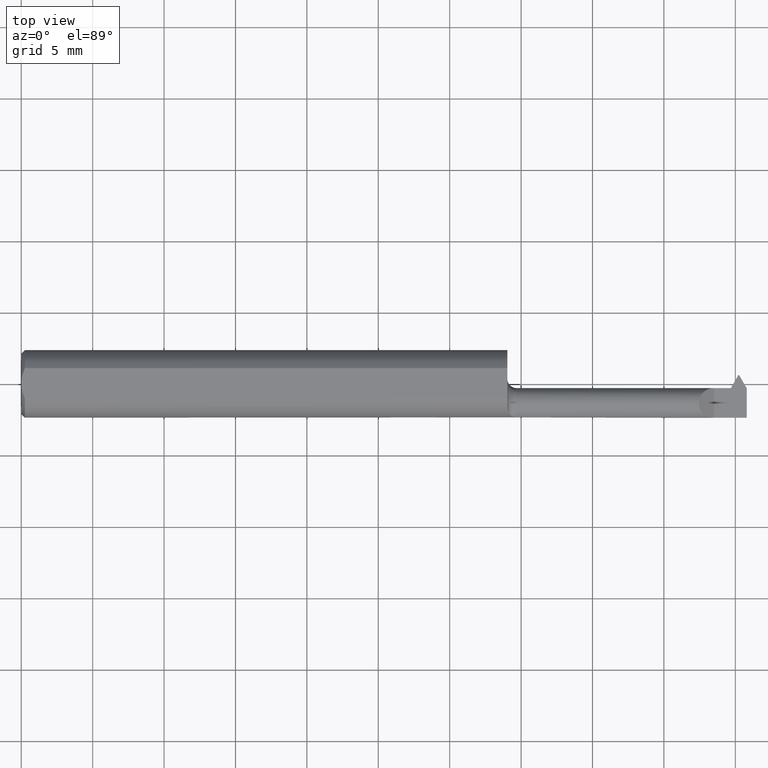
[diagram: clean part render]
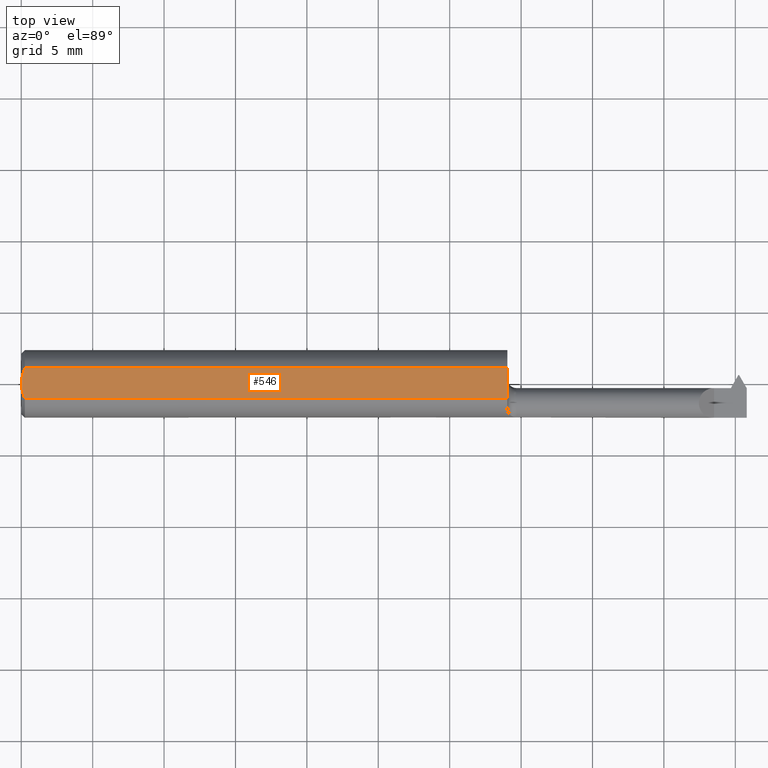
[diagram: same view with one face highlighted and labeled with its STEP entity id]
A machine part, top view. The second image highlights one B-rep face of the part: STEP entity #546.
In plain terms, the highlighted planar face has unit normal (0, 0, 1).
Its self-contained STEP definition (entity closure, byte-faithful):
#63 = LINE ( 'NONE', #794, #655 ) ;
#64 = VERTEX_POINT ( 'NONE', #628 ) ;
#75 = DIRECTION ( 'NONE',  ( -1.000000000000000000, -0.000000000000000000, -0.000000000000000000 ) ) ;
#84 = CARTESIAN_POINT ( 'NONE',  ( 0.004072204388638599876, -0.02891446873729323561, 0.08359999999999992437 ) ) ;
#88 = AXIS2_PLACEMENT_3D ( 'NONE', #401, #770, #98 ) ;
#98 = DIRECTION ( 'NONE',  ( 1.000000000000000000, 0.000000000000000000, -0.000000000000000000 ) ) ;
#100 = LINE ( 'NONE', #773, #589 ) ;
#119 = VERTEX_POINT ( 'NONE', #779 ) ;
#135 = EDGE_CURVE ( 'NONE', #225, #395, #100, .T. ) ;
#150 = VECTOR ( 'NONE', #75, 39.37007874015748143 ) ;
#171 = DIRECTION ( 'NONE',  ( -2.788895906680674731E-17, 1.000000000000000000, 0.000000000000000000 ) ) ;
#197 = ORIENTED_EDGE ( 'NONE', *, *, #433, .F. ) ;
#223 = CARTESIAN_POINT ( 'NONE',  ( 1.339999999999999858, -0.04209513035969859179, 0.08359999999999992437 ) ) ;
#225 = VERTEX_POINT ( 'NONE', #223 ) ;
#226 = B_SPLINE_CURVE_WITH_KNOTS ( 'NONE', 3,
 ( #397, #84, #318, #444 ),
 .UNSPECIFIED., .F., .F.,
 ( 4, 4 ),
 ( 0.0006429768761302141322, 0.001744210492668867019 ),
 .UNSPECIFIED. ) ;
#235 = EDGE_CURVE ( 'NONE', #64, #119, #355, .T. ) ;
#249 = ORIENTED_EDGE ( 'NONE', *, *, #235, .F. ) ;
#252 = CARTESIAN_POINT ( 'NONE',  ( 0.009999999999999877043, 0.04209513035969860567, 0.08359999999999989662 ) ) ;
#293 = CARTESIAN_POINT ( 'NONE',  ( 0.009999999999999877043, -0.04209513035969860567, 0.08359999999999989662 ) ) ;
#308 = ORIENTED_EDGE ( 'NONE', *, *, #135, .T. ) ;
#318 = CARTESIAN_POINT ( 'NONE',  ( -2.262195879907695790E-16, -0.01462709520273676109, 0.08359999999999992437 ) ) ;
#337 = FACE_OUTER_BOUND ( 'NONE', #512, .T. ) ;
#355 = B_SPLINE_CURVE_WITH_KNOTS ( 'NONE', 3,
 ( #483, #720, #713, #731, #485, #252 ),
 .UNSPECIFIED., .F., .F.,
 ( 4, 2, 4 ),
 ( 0.001744210492668867019, 0.002295110172257195866, 0.002846009851845524713 ),
 .UNSPECIFIED. ) ;
#377 = EDGE_CURVE ( 'NONE', #607, #225, #63, .T. ) ;
#390 = ORIENTED_EDGE ( 'NONE', *, *, #394, .T. ) ;
#394 = EDGE_CURVE ( 'NONE', #395, #119, #559, .T. ) ;
#395 = VERTEX_POINT ( 'NONE', #621 ) ;
#397 = CARTESIAN_POINT ( 'NONE',  ( 0.009999999999999877043, -0.04209513035969860567, 0.08359999999999989662 ) ) ;
#401 = CARTESIAN_POINT ( 'NONE',  ( 2.191425808082400728, 0.09360000000000001652, 0.08359999999999992437 ) ) ;
#413 = ORIENTED_EDGE ( 'NONE', *, *, #377, .T. ) ;
#433 = EDGE_CURVE ( 'NONE', #607, #64, #226, .T. ) ;
#440 = CARTESIAN_POINT ( 'NONE',  ( 0.000000000000000000, 0.04209513035969860567, 0.08359999999999989662 ) ) ;
#444 = CARTESIAN_POINT ( 'NONE',  ( 0.000000000000000000, 0.000000000000000000, 0.08359999999999992437 ) ) ;
#483 = CARTESIAN_POINT ( 'NONE',  ( 0.000000000000000000, 0.000000000000000000, 0.08359999999999992437 ) ) ;
#485 = CARTESIAN_POINT ( 'NONE',  ( 0.007036739039485557373, 0.03550621559607056860, 0.08359999999999992437 ) ) ;
#512 = EDGE_LOOP ( 'NONE', ( #413, #308, #390, #249, #197 ) ) ;
#527 = PLANE ( 'NONE',  #88 ) ;
#546 = ADVANCED_FACE ( 'NONE', ( #337 ), #527, .T. ) ;
#559 = LINE ( 'NONE', #440, #150 ) ;
#589 = VECTOR ( 'NONE', #171, 39.37007874015748143 ) ;
#607 = VERTEX_POINT ( 'NONE', #293 ) ;
#615 = DIRECTION ( 'NONE',  ( 1.000000000000000000, 0.000000000000000000, 0.000000000000000000 ) ) ;
#621 = CARTESIAN_POINT ( 'NONE',  ( 1.339999999999999858, 0.04209513035969860567, 0.08359999999999989662 ) ) ;
#628 = CARTESIAN_POINT ( 'NONE',  ( 0.000000000000000000, 0.000000000000000000, 0.08359999999999992437 ) ) ;
#655 = VECTOR ( 'NONE', #615, 39.37007874015748143 ) ;
#713 = CARTESIAN_POINT ( 'NONE',  ( 0.0009807498324115896879, 0.01453516766257749275, 0.08359999999999992437 ) ) ;
#720 = CARTESIAN_POINT ( 'NONE',  ( -2.346264590017496984E-16, 0.007317304829308919449, 0.08359999999999995213 ) ) ;
#731 = CARTESIAN_POINT ( 'NONE',  ( 0.004492168231814527152, 0.02859366993844192698, 0.08359999999999991049 ) ) ;
#770 = DIRECTION ( 'NONE',  ( 0.000000000000000000, 0.000000000000000000, 1.000000000000000000 ) ) ;
#773 = CARTESIAN_POINT ( 'NONE',  ( 1.339999999999999858, 0.09359999999999998876, 0.08359999999999992437 ) ) ;
#779 = CARTESIAN_POINT ( 'NONE',  ( 0.009999999999999877043, 0.04209513035969860567, 0.08359999999999989662 ) ) ;
#794 = CARTESIAN_POINT ( 'NONE',  ( 0.000000000000000000, -0.04209513035969860567, 0.08359999999999989662 ) ) ;